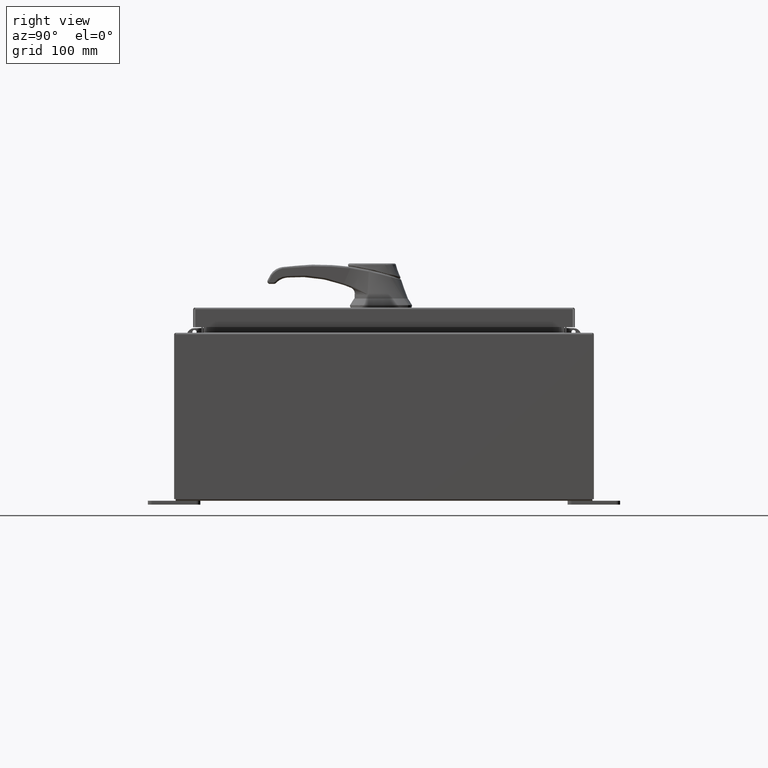
[diagram: clean part render]
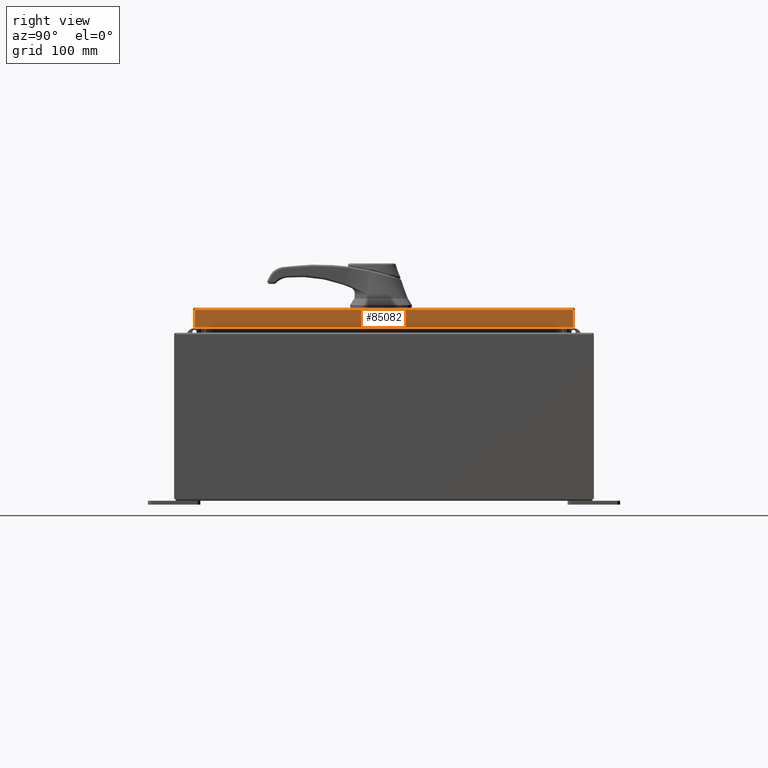
[diagram: same view with one face highlighted and labeled with its STEP entity id]
A machine part, right view. The second image highlights one B-rep face of the part: STEP entity #85082.
In plain terms, the highlighted planar face has unit normal (1, 0, 0).
Its self-contained STEP definition (entity closure, byte-faithful):
#1862 = ORIENTED_EDGE ( 'NONE', *, *, #97701, .T. ) ;
#9465 = AXIS2_PLACEMENT_3D ( 'NONE', #35625, #44590, #104402 ) ;
#12477 = DIRECTION ( 'NONE',  ( 0.0000000000000000000, -1.000000000000000000, 0.0000000000000000000 ) ) ;
#16014 = LINE ( 'NONE', #94863, #38633 ) ;
#18885 = VECTOR ( 'NONE', #87674, 39.37007874015748100 ) ;
#21549 = DIRECTION ( 'NONE',  ( -2.532419924601866100E-015, -6.982962677686265900E-015, 1.000000000000000000 ) ) ;
#21752 = CARTESIAN_POINT ( 'NONE',  ( 11.07800000000000300, 9.005157864376274200, -0.9376999999999997600 ) ) ;
#28008 = CARTESIAN_POINT ( 'NONE',  ( 11.07799999999999900, 0.0000000000000000000, -0.08770000000000008300 ) ) ;
#31569 = VECTOR ( 'NONE', #21549, 39.37007874015748100 ) ;
#33235 = EDGE_CURVE ( 'NONE', #45955, #57730, #16014, .T. ) ;
#35625 = CARTESIAN_POINT ( 'NONE',  ( 11.07799999999999900, 0.0000000000000000000, 2.831496158075105700E-014 ) ) ;
#38633 = VECTOR ( 'NONE', #102788, 39.37007874015748100 ) ;
#41551 = LINE ( 'NONE', #28008, #18885 ) ;
#42919 = CARTESIAN_POINT ( 'NONE',  ( 11.07799999999999900, -9.005157864376268900, -0.08770000000000008300 ) ) ;
#44590 = DIRECTION ( 'NONE',  ( 1.000000000000000000, 0.0000000000000000000, 2.532419924601866100E-015 ) ) ;
#45955 = VERTEX_POINT ( 'NONE', #94436 ) ;
#56938 = LINE ( 'NONE', #89440, #31569 ) ;
#57263 = EDGE_CURVE ( 'NONE', #100772, #82584, #56938, .T. ) ;
#57389 = VECTOR ( 'NONE', #12477, 39.37007874015748100 ) ;
#57730 = VERTEX_POINT ( 'NONE', #42919 ) ;
#60035 = LINE ( 'NONE', #72129, #57389 ) ;
#61678 = ORIENTED_EDGE ( 'NONE', *, *, #103186, .F. ) ;
#62570 = ORIENTED_EDGE ( 'NONE', *, *, #57263, .T. ) ;
#72129 = CARTESIAN_POINT ( 'NONE',  ( 11.07800000000000300, -9.093999999999999400, -0.9376999999999997600 ) ) ;
#82584 = VERTEX_POINT ( 'NONE', #97903 ) ;
#85082 = ADVANCED_FACE ( 'NONE', ( #86848 ), #110260, .T. ) ;
#86848 = FACE_OUTER_BOUND ( 'NONE', #89265, .T. ) ;
#87674 = DIRECTION ( 'NONE',  ( 0.0000000000000000000, -1.000000000000000000, 0.0000000000000000000 ) ) ;
#89265 = EDGE_LOOP ( 'NONE', ( #101527, #61678, #62570, #1862 ) ) ;
#89440 = CARTESIAN_POINT ( 'NONE',  ( 11.07799999999999900, 9.005157864376267100, 9.119764285436349800E-014 ) ) ;
#94436 = CARTESIAN_POINT ( 'NONE',  ( 11.07800000000000300, -9.005157864376261800, -0.9376999999999997600 ) ) ;
#94863 = CARTESIAN_POINT ( 'NONE',  ( 11.07799999999999900, -9.005157864376268900, -0.07469999999999980800 ) ) ;
#97701 = EDGE_CURVE ( 'NONE', #82584, #57730, #41551, .T. ) ;
#97903 = CARTESIAN_POINT ( 'NONE',  ( 11.07799999999999900, 9.005157864376268900, -0.08770000000000008300 ) ) ;
#100772 = VERTEX_POINT ( 'NONE', #21752 ) ;
#101527 = ORIENTED_EDGE ( 'NONE', *, *, #33235, .F. ) ;
#102788 = DIRECTION ( 'NONE',  ( -2.532419924601866100E-015, -6.982962677686265900E-015, 1.000000000000000000 ) ) ;
#103186 = EDGE_CURVE ( 'NONE', #100772, #45955, #60035, .T. ) ;
#104402 = DIRECTION ( 'NONE',  ( 2.532419924601866100E-015, 0.0000000000000000000, -1.000000000000000000 ) ) ;
#110260 = PLANE ( 'NONE',  #9465 ) ;